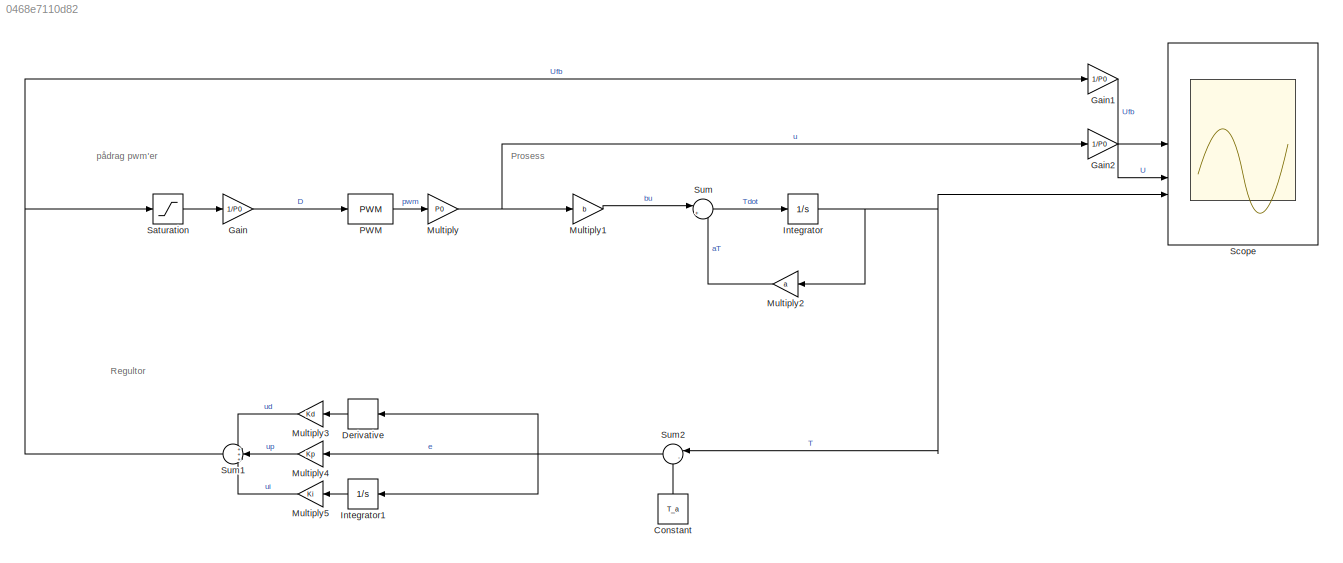
MODEL slx_0468e7110d82
KIND model
CONFIG AbsTol = auto
CONFIG EnableMultiTasking = off
CONFIG FixedStep = auto
CONFIG MaxStep = auto
CONFIG MinStep = auto
CONFIG RelTol = 1e-3
CONFIG SampleTimeConstraint = Unconstrained
CONFIG SolverName = VariableStepAuto
CONFIG StartTime = 0.0
CONFIG StopTime = 20.0
BLOCK [Constant] Constant
  NameLocation = right
  Value = T_a
BLOCK [Derivative] Derivative
BLOCK [Gain] Gain
  Gain = 1/P0
BLOCK [Gain] Gain1
  Gain = 1/P0
BLOCK [Gain] Gain2
  Gain = 1/P0
BLOCK [Integrator] Integrator
  InitialCondition = T_0
BLOCK [Integrator] Integrator1
BLOCK [Gain] Multiply
  Gain = P0
BLOCK [Gain] Multiply1
  Gain = b
BLOCK [Gain] Multiply2
  Gain = a
BLOCK [Gain] Multiply3
  Gain = Kd
BLOCK [Gain] Multiply4
  Gain = Kp
BLOCK [Gain] Multiply5
  Gain = Ki
BLOCK [Reference] PWM  REF=simulink/Discontinuities/PWM
  DisableCoverage = on
  SourceBlock = simulink/Discontinuities/PWM
  SourceType = PWM
BLOCK [Saturate] Saturation
  LowerLimit = 0
  UpperLimit = P0
BLOCK [Scope] Scope
  Floating = off
  NumInputPorts = 3
  ScopeSpecificationString = Simulink.scopes.TimeScopeBlockCfg('CurrentConfiguration', extmgr.ConfigurationSet(extmgr.Configuration('Core','General UI',true),extmgr.Configuration('Core','Source UI',true),extmgr.Configuration('Sources','WiredSimulink',true),extmgr.Configuration('Visuals','Time Domain',true,'SerializedDisplays',{struct('MinYLimReal','-4.44876','MaxYLimReal','40.03886','YLabelReal','','MinYLimMag','0.00000','Max...<+1470ch>
BLOCK [Sum] Sum
  Inputs = |++
BLOCK [Sum] Sum1
  Inputs = +++
BLOCK [Sum] Sum2
  Inputs = |-+
ANNOTATION (root): Prosess
ANNOTATION (root): Regultor
ANNOTATION (root): pådrag pwm'er
LINE Constant:1 -> Sum2:2
LINE Derivative:1 -> Multiply3:1
LINE Gain1:1 -> Scope:1
LINE Gain2:1 -> Scope:2
LINE Gain:1 -> PWM:1
LINE Integrator1:1 -> Multiply5:1
NET Integrator:1 -> Multiply2:1, Scope:3, Sum2:1
LINE Multiply1:1 -> Sum:1
LINE Multiply2:1 -> Sum:2
LINE Multiply3:1 -> Sum1:1
LINE Multiply4:1 -> Sum1:2
LINE Multiply5:1 -> Sum1:3
NET Multiply:1 -> Gain2:1, Multiply1:1
LINE PWM:1 -> Multiply:1
LINE Saturation:1 -> Gain:1
NET Sum1:1 -> Gain1:1, Saturation:1
NET Sum2:1 -> Derivative:1, Integrator1:1, Multiply4:1
LINE Sum:1 -> Integrator:1
note: NET lines group one-source signal fan-out (src -> all destinations, sorted); 1:1 wires keep LINE
